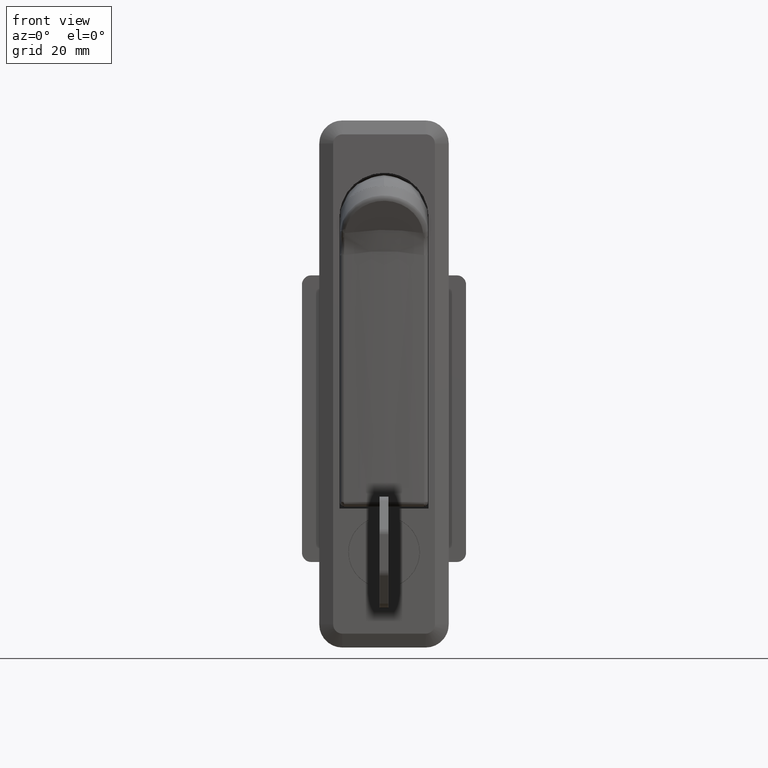
[diagram: clean part render]
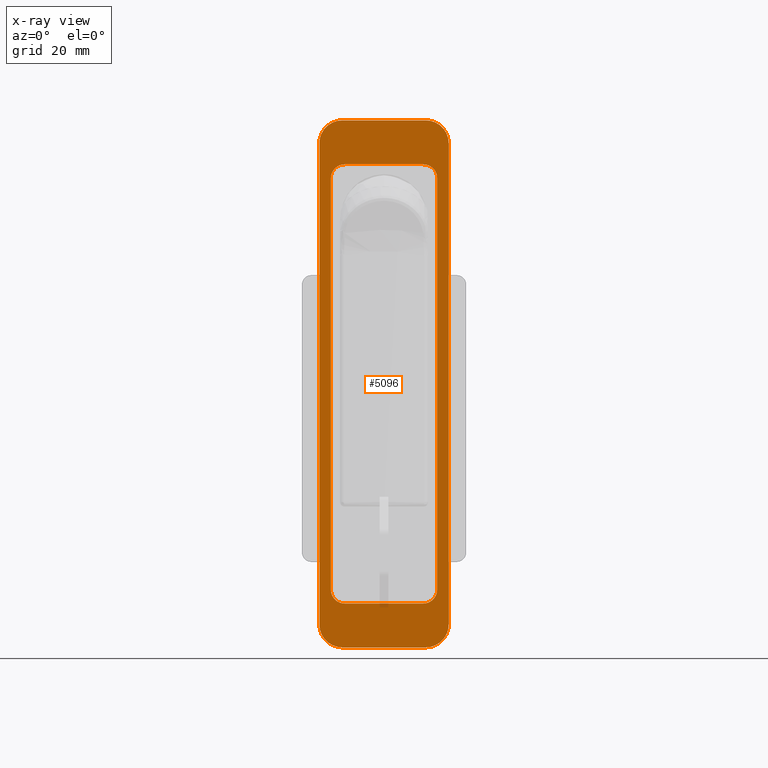
[diagram: x-ray — body ghosted, one internal face saturated and labeled with its STEP entity id]
A machine part, front view, then the same camera in x-ray: the body is ghosted and one INTERNAL B-rep face — a face not visible from any outside direction — is saturated and labeled: STEP entity #5096.
In plain terms, the highlighted face is a freeform B-spline surface patch.
Its self-contained STEP definition (entity closure, byte-faithful):
#4915=CARTESIAN_POINT('',(-15.398599945730570,0.0,26.694299779045870));
#4916=CARTESIAN_POINT('',(15.398600696749090,0.0,26.694299779045870));
#4917=CARTESIAN_POINT('',(-15.398599945730570,0.0,-98.694302836764123));
#4918=CARTESIAN_POINT('',(15.398600696749090,0.0,-98.694302836764123));
#4919=B_SPLINE_SURFACE_WITH_KNOTS('',1,1,((#4915,#4917),(#4916,#4918)),.UNSPECIFIED.,.F.,.F.,.U.,(2,2),(2,2),(0.0,30.797200642479659),(0.0,125.388602615810000),.UNSPECIFIED.);
#4920=CARTESIAN_POINT('',(-9.0,0.0,21.0));
#4921=VERTEX_POINT('',#4920);
#4922=CARTESIAN_POINT('',(-14.0,0.0,16.0));
#4923=VERTEX_POINT('',#4922);
#4924=CARTESIAN_POINT('',(-9.0,0.0,21.0));
#4925=CARTESIAN_POINT('',(-9.429522544400834,0.0,21.000125438817879));
#4926=CARTESIAN_POINT('',(-10.145310006129190,0.0,20.907158752751521));
#4927=CARTESIAN_POINT('',(-11.208422429030630,0.0,20.526819303718561));
#4928=CARTESIAN_POINT('',(-12.103178593425991,0.0,19.975519779679161));
#4929=CARTESIAN_POINT('',(-12.849277320548760,0.0,19.238414776696761));
#4930=CARTESIAN_POINT('',(-13.395102674037780,0.0,18.442804628113869));
#4931=CARTESIAN_POINT('',(-13.861639333091841,0.0,17.390653568734159));
#4932=CARTESIAN_POINT('',(-14.000270745607271,0.0,16.531813161091868));
#4933=CARTESIAN_POINT('',(-14.0,0.0,16.0));
#4934=B_SPLINE_CURVE_WITH_KNOTS('',3,(#4924,#4925,#4926,#4927,#4928,#4929,#4930,#4931,#4932,#4933),.UNSPECIFIED.,.F.,.U.,(4,1,1,1,1,1,1,4),(0.000000187239440,1.288538735399699,2.147589550967203,3.374790518897465,4.417846862517375,5.276920369706684,6.258689796392946,7.854030914393184),.UNSPECIFIED.);
#4935=EDGE_CURVE('',#4921,#4923,#4934,.T.);
#4936=ORIENTED_EDGE('',*,*,#4935,.T.);
#4937=CARTESIAN_POINT('',(-14.0,0.0,-88.0));
#4938=VERTEX_POINT('',#4937);
#4939=CARTESIAN_POINT('',(-14.0,0.0,16.0));
#4940=CARTESIAN_POINT('',(-14.0,0.0,-88.0));
#4941=QUASI_UNIFORM_CURVE('',1,(#4939,#4940),.UNSPECIFIED.,.F.,.U.);
#4942=EDGE_CURVE('',#4923,#4938,#4941,.T.);
#4943=ORIENTED_EDGE('',*,*,#4942,.T.);
#4944=CARTESIAN_POINT('',(-9.0,0.0,-93.0));
#4945=VERTEX_POINT('',#4944);
#4946=CARTESIAN_POINT('',(-14.0,0.0,-88.0));
#4947=CARTESIAN_POINT('',(-14.000438021120420,0.0,-88.572755016209896));
#4948=CARTESIAN_POINT('',(-13.843597035037529,0.0,-89.472385219064719));
#4949=CARTESIAN_POINT('',(-13.342621154251580,0.0,-90.531341099555135));
#4950=CARTESIAN_POINT('',(-12.758730755516311,0.0,-91.349813722331874));
#4951=CARTESIAN_POINT('',(-11.988750979637480,0.0,-92.065116655271211));
#4952=CARTESIAN_POINT('',(-11.021856322893161,0.0,-92.612820395419320));
#4953=CARTESIAN_POINT('',(-10.022624616051621,0.0,-92.929301549735470));
#4954=CARTESIAN_POINT('',(-9.347697397652119,0.0,-93.000055462400880));
#4955=CARTESIAN_POINT('',(-9.0,0.0,-93.0));
#4956=B_SPLINE_CURVE_WITH_KNOTS('',3,(#4946,#4947,#4948,#4949,#4950,#4951,#4952,#4953,#4954,#4955),.UNSPECIFIED.,.F.,.U.,(4,1,1,1,1,1,1,4),(0.000000187219062,1.718068783788119,2.699836263540582,3.497507710981252,4.724667364366521,5.829163123151220,6.810945192790424,7.854030914393166),.UNSPECIFIED.);
#4957=EDGE_CURVE('',#4938,#4945,#4956,.T.);
#4958=ORIENTED_EDGE('',*,*,#4957,.T.);
#4959=CARTESIAN_POINT('',(9.0,0.0,-93.0));
#4960=VERTEX_POINT('',#4959);
#4961=CARTESIAN_POINT('',(-9.0,0.0,-93.0));
#4962=CARTESIAN_POINT('',(9.0,0.0,-93.0));
#4963=QUASI_UNIFORM_CURVE('',1,(#4961,#4962),.UNSPECIFIED.,.F.,.U.);
#4964=EDGE_CURVE('',#4945,#4960,#4963,.T.);
#4965=ORIENTED_EDGE('',*,*,#4964,.T.);
#4966=CARTESIAN_POINT('',(14.0,0.0,-88.0));
#4967=VERTEX_POINT('',#4966);
#4968=CARTESIAN_POINT('',(9.0,0.0,-93.0));
#4969=CARTESIAN_POINT('',(9.470419420135087,0.0,-93.000128295409283));
#4970=CARTESIAN_POINT('',(10.452140764510750,0.0,-92.860554386517393));
#4971=CARTESIAN_POINT('',(11.690405121325270,0.0,-92.284228455427751));
#4972=CARTESIAN_POINT('',(12.603508617505421,0.0,-91.515566141128275));
#4973=CARTESIAN_POINT('',(13.342385791563681,0.0,-90.581019652600190));
#4974=CARTESIAN_POINT('',(13.869534463828490,0.0,-89.411287805486126));
#4975=CARTESIAN_POINT('',(14.000095165598410,0.0,-88.449959499869777));
#4976=CARTESIAN_POINT('',(14.0,0.0,-88.0));
#4977=B_SPLINE_CURVE_WITH_KNOTS('',3,(#4968,#4969,#4970,#4971,#4972,#4973,#4974,#4975,#4976),.UNSPECIFIED.,.F.,.U.,(4,1,1,1,1,1,4),(0.000000187243428,1.411257576331825,2.945268014008354,4.049711368691909,4.970101300203628,6.504126123282365,7.854030914393175),.UNSPECIFIED.);
#4978=EDGE_CURVE('',#4960,#4967,#4977,.T.);
#4979=ORIENTED_EDGE('',*,*,#4978,.T.);
#4980=CARTESIAN_POINT('',(14.0,0.0,16.0));
#4981=VERTEX_POINT('',#4980);
#4982=CARTESIAN_POINT('',(14.0,0.0,-88.0));
#4983=CARTESIAN_POINT('',(14.0,0.0,16.0));
#4984=QUASI_UNIFORM_CURVE('',1,(#4982,#4983),.UNSPECIFIED.,.F.,.U.);
#4985=EDGE_CURVE('',#4967,#4981,#4984,.T.);
#4986=ORIENTED_EDGE('',*,*,#4985,.T.);
#4987=CARTESIAN_POINT('',(9.0,0.0,21.0));
#4988=VERTEX_POINT('',#4987);
#4989=CARTESIAN_POINT('',(14.0,0.0,16.0));
#4990=CARTESIAN_POINT('',(14.000129197685000,0.0,16.470418418395781));
#4991=CARTESIAN_POINT('',(13.860550066368670,0.0,17.452145715113890));
#4992=CARTESIAN_POINT('',(13.310408200678090,0.0,18.634123612084380));
#4993=CARTESIAN_POINT('',(12.560100620955669,0.0,19.559527454396619));
#4994=CARTESIAN_POINT('',(11.637607331146620,0.0,20.316890404977340));
#4995=CARTESIAN_POINT('',(10.411285756050530,0.0,20.869540128256212));
#4996=CARTESIAN_POINT('',(9.449959987212095,0.0,21.000093967272480));
#4997=CARTESIAN_POINT('',(9.0,0.0,21.0));
#4998=B_SPLINE_CURVE_WITH_KNOTS('',3,(#4989,#4990,#4991,#4992,#4993,#4994,#4995,#4996,#4997),.UNSPECIFIED.,.F.,.U.,(4,1,1,1,1,1,4),(0.000000187237395,1.411257576328274,2.945268014007066,3.865711424111548,4.970101300204174,6.504126123282451,7.854030914393181),.UNSPECIFIED.);
#4999=EDGE_CURVE('',#4981,#4988,#4998,.T.);
#5000=ORIENTED_EDGE('',*,*,#4999,.T.);
#5001=CARTESIAN_POINT('',(9.0,0.0,21.0));
#5002=CARTESIAN_POINT('',(-9.0,0.0,21.0));
#5003=QUASI_UNIFORM_CURVE('',1,(#5001,#5002),.UNSPECIFIED.,.F.,.U.);
#5004=EDGE_CURVE('',#4988,#4921,#5003,.T.);
#5005=ORIENTED_EDGE('',*,*,#5004,.T.);
#5006=EDGE_LOOP('',(#4936,#4943,#4958,#4965,#4979,#4986,#5000,#5005));
#5007=FACE_OUTER_BOUND('',#5006,.T.);
#5008=CARTESIAN_POINT('',(-11.500000000000000,0.0,8.500000000000000));
#5009=VERTEX_POINT('',#5008);
#5010=CARTESIAN_POINT('',(-8.500000000000000,0.0,11.500000000000000));
#5011=VERTEX_POINT('',#5010);
#5012=CARTESIAN_POINT('',(-11.500000000000000,0.0,8.500000000000000));
#5013=CARTESIAN_POINT('',(-11.500121553836021,0.0,8.794539700055147));
#5014=CARTESIAN_POINT('',(-11.430754454364660,0.0,9.260787200900509));
#5015=CARTESIAN_POINT('',(-11.183739851499670,0.0,9.878372728869405));
#5016=CARTESIAN_POINT('',(-10.880290699829430,0.0,10.357596157039451));
#5017=CARTESIAN_POINT('',(-10.472160431003889,0.0,10.786260940122631));
#5018=CARTESIAN_POINT('',(-9.988247422343687,0.0,11.127074781450760));
#5019=CARTESIAN_POINT('',(-9.334395936784718,0.0,11.416978325634400));
#5020=CARTESIAN_POINT('',(-8.819088937860649,0.0,11.500160027069359));
#5021=CARTESIAN_POINT('',(-8.500000000000000,0.0,11.500000000000000));
#5022=B_SPLINE_CURVE_WITH_KNOTS('',3,(#5012,#5013,#5014,#5015,#5016,#5017,#5018,#5019,#5020,#5021),.UNSPECIFIED.,.F.,.U.,(4,1,1,1,1,1,1,4),(0.000000209627297,0.883591052377643,1.399028360778325,1.988124789911842,2.577103453604205,3.166198470535564,3.755279448363456,4.712507233015033),.UNSPECIFIED.);
#5023=EDGE_CURVE('',#5009,#5011,#5022,.T.);
#5024=ORIENTED_EDGE('',*,*,#5023,.T.);
#5025=CARTESIAN_POINT('',(8.500000000000000,0.0,11.500000000000000));
#5026=VERTEX_POINT('',#5025);
#5027=CARTESIAN_POINT('',(-8.500000000000000,0.0,11.500000000000000));
#5028=CARTESIAN_POINT('',(8.500000000000000,0.0,11.500000000000000));
#5029=QUASI_UNIFORM_CURVE('',1,(#5027,#5028),.UNSPECIFIED.,.F.,.U.);
#5030=EDGE_CURVE('',#5011,#5026,#5029,.T.);
#5031=ORIENTED_EDGE('',*,*,#5030,.T.);
#5032=CARTESIAN_POINT('',(11.500000000000000,0.0,8.500000000000000));
#5033=VERTEX_POINT('',#5032);
#5034=CARTESIAN_POINT('',(8.500000000000000,0.0,11.500000000000000));
#5035=CARTESIAN_POINT('',(8.794539700055147,0.0,11.500121553836021));
#5036=CARTESIAN_POINT('',(9.260787200900509,0.0,11.430754454364660));
#5037=CARTESIAN_POINT('',(9.878372728869405,0.0,11.183739851499670));
#5038=CARTESIAN_POINT('',(10.357596157039451,0.0,10.880290699829430));
#5039=CARTESIAN_POINT('',(10.786260940122631,0.0,10.472160431003889));
#5040=CARTESIAN_POINT('',(11.127074781450760,0.0,9.988247422343687));
#5041=CARTESIAN_POINT('',(11.416978325634400,0.0,9.334395936784718));
#5042=CARTESIAN_POINT('',(11.500160027069359,0.0,8.819088937860649));
#5043=CARTESIAN_POINT('',(11.500000000000000,0.0,8.500000000000000));
#5044=B_SPLINE_CURVE_WITH_KNOTS('',3,(#5034,#5035,#5036,#5037,#5038,#5039,#5040,#5041,#5042,#5043),.UNSPECIFIED.,.F.,.U.,(4,1,1,1,1,1,1,4),(0.000000209627297,0.883591052377643,1.399028360778325,1.988124789911842,2.577103453604205,3.166198470535564,3.755279448363456,4.712507233015033),.UNSPECIFIED.);
#5045=EDGE_CURVE('',#5026,#5033,#5044,.T.);
#5046=ORIENTED_EDGE('',*,*,#5045,.T.);
#5047=CARTESIAN_POINT('',(11.500000000000000,0.0,-80.500000000000000));
#5048=VERTEX_POINT('',#5047);
#5049=CARTESIAN_POINT('',(11.500000000000000,0.0,8.500000000000000));
#5050=CARTESIAN_POINT('',(11.500000000000000,0.0,-80.500000000000000));
#5051=QUASI_UNIFORM_CURVE('',1,(#5049,#5050),.UNSPECIFIED.,.F.,.U.);
#5052=EDGE_CURVE('',#5033,#5048,#5051,.T.);
#5053=ORIENTED_EDGE('',*,*,#5052,.T.);
#5054=CARTESIAN_POINT('',(8.500000000000000,0.0,-83.500000000000000));
#5055=VERTEX_POINT('',#5054);
#5056=CARTESIAN_POINT('',(11.500000000000000,0.0,-80.500000000000000));
#5057=CARTESIAN_POINT('',(11.500142008665510,0.0,-80.794540942692649));
#5058=CARTESIAN_POINT('',(11.430737177884600,0.0,-81.260785159239347));
#5059=CARTESIAN_POINT('',(11.183738810984840,0.0,-81.878370071923129));
#5060=CARTESIAN_POINT('',(10.853927187125469,0.0,-82.399297709095094));
#5061=CARTESIAN_POINT('',(10.434261778613530,0.0,-82.818934652311157));
#5062=CARTESIAN_POINT('',(9.902222484857209,0.0,-83.174438091043442));
#5063=CARTESIAN_POINT('',(9.285366540353941,0.0,-83.429957059634589));
#5064=CARTESIAN_POINT('',(8.769982529108479,0.0,-83.500090602237819));
#5065=CARTESIAN_POINT('',(8.500000000000000,0.0,-83.500000000000000));
#5066=B_SPLINE_CURVE_WITH_KNOTS('',3,(#5056,#5057,#5058,#5059,#5060,#5061,#5062,#5063,#5064,#5065),.UNSPECIFIED.,.F.,.U.,(4,1,1,1,1,1,1,4),(0.000000209631263,0.883591052381359,1.399028360781423,1.988124789914135,2.724383931717831,3.166198470536914,3.902562485183700,4.712507233015032),.UNSPECIFIED.);
#5067=EDGE_CURVE('',#5048,#5055,#5066,.T.);
#5068=ORIENTED_EDGE('',*,*,#5067,.T.);
#5069=CARTESIAN_POINT('',(-8.500000000000000,0.0,-83.500000000000000));
#5070=VERTEX_POINT('',#5069);
#5071=CARTESIAN_POINT('',(8.500000000000000,0.0,-83.500000000000000));
#5072=CARTESIAN_POINT('',(-8.500000000000000,0.0,-83.500000000000000));
#5073=QUASI_UNIFORM_CURVE('',1,(#5071,#5072),.UNSPECIFIED.,.F.,.U.);
#5074=EDGE_CURVE('',#5055,#5070,#5073,.T.);
#5075=ORIENTED_EDGE('',*,*,#5074,.T.);
#5076=CARTESIAN_POINT('',(-11.500000000000000,0.0,-80.500000000000000));
#5077=VERTEX_POINT('',#5076);
#5078=CARTESIAN_POINT('',(-8.500000000000000,0.0,-83.500000000000000));
#5079=CARTESIAN_POINT('',(-8.917290121969966,0.0,-83.500500158146167));
#5080=CARTESIAN_POINT('',(-9.677835357455178,0.0,-83.338685276659163));
#5081=CARTESIAN_POINT('',(-10.485393710071950,0.0,-82.798919985810059));
#5082=CARTESIAN_POINT('',(-11.065365982009610,0.0,-82.126542949894514));
#5083=CARTESIAN_POINT('',(-11.416809362968040,0.0,-81.383637287284017));
#5084=CARTESIAN_POINT('',(-11.500035396325501,0.0,-80.769958131712528));
#5085=CARTESIAN_POINT('',(-11.500000000000000,0.0,-80.500000000000000));
#5086=B_SPLINE_CURVE_WITH_KNOTS('',3,(#5078,#5079,#5080,#5081,#5082,#5083,#5084,#5085),.UNSPECIFIED.,.F.,.U.,(4,1,1,1,1,4),(0.000000209633626,1.251764030852727,2.282647138330211,2.871679974517739,3.902562485183429,4.712507233015018),.UNSPECIFIED.);
#5087=EDGE_CURVE('',#5070,#5077,#5086,.T.);
#5088=ORIENTED_EDGE('',*,*,#5087,.T.);
#5089=CARTESIAN_POINT('',(-11.500000000000000,0.0,-80.500000000000000));
#5090=CARTESIAN_POINT('',(-11.500000000000000,0.0,8.500000000000000));
#5091=QUASI_UNIFORM_CURVE('',1,(#5089,#5090),.UNSPECIFIED.,.F.,.U.);
#5092=EDGE_CURVE('',#5077,#5009,#5091,.T.);
#5093=ORIENTED_EDGE('',*,*,#5092,.T.);
#5094=EDGE_LOOP('',(#5024,#5031,#5046,#5053,#5068,#5075,#5088,#5093));
#5095=FACE_BOUND('',#5094,.T.);
#5096=ADVANCED_FACE('',(#5007,#5095),#4919,.F.);